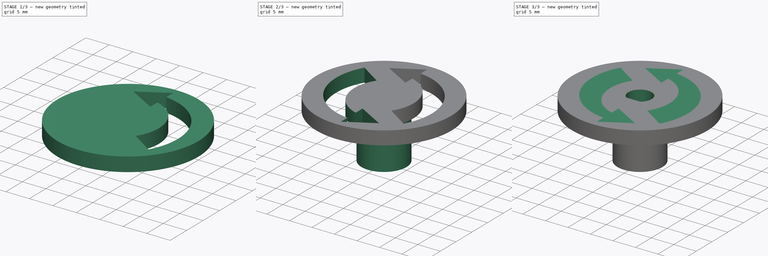
[diagram: build sequence overview — one tinted view per stage of 3, left to right]
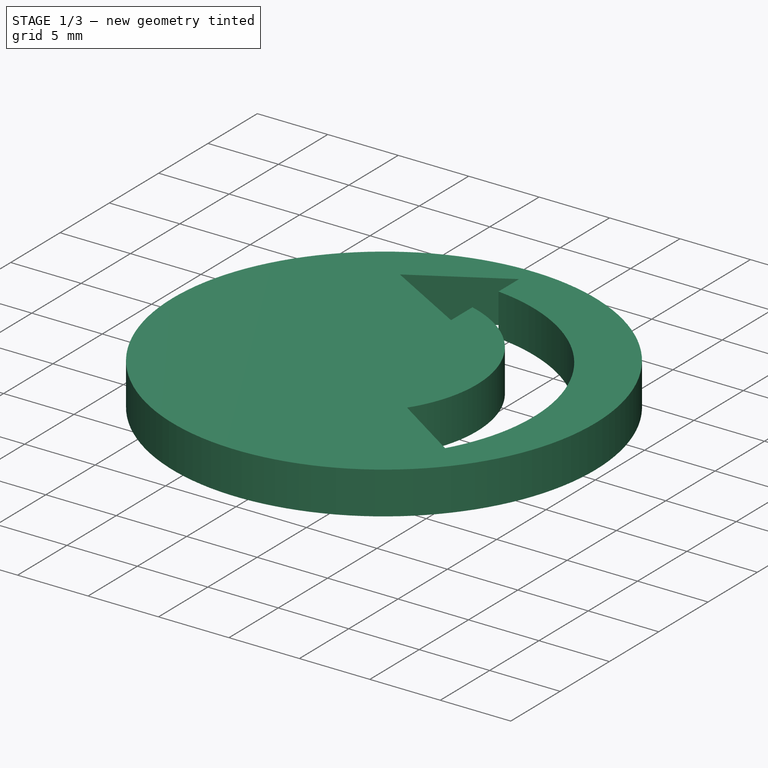
[diagram: stage 1 of 3 — iso view after this stage's code; geometry added in this stage tinted green]
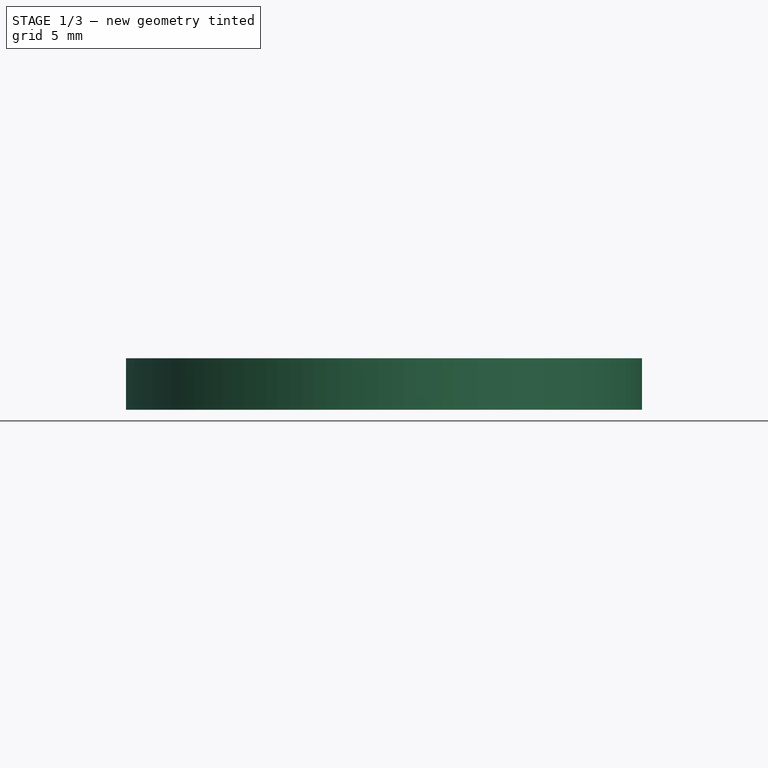
[diagram: stage 1 of 3 — front view after this stage's code; geometry added in this stage tinted green]
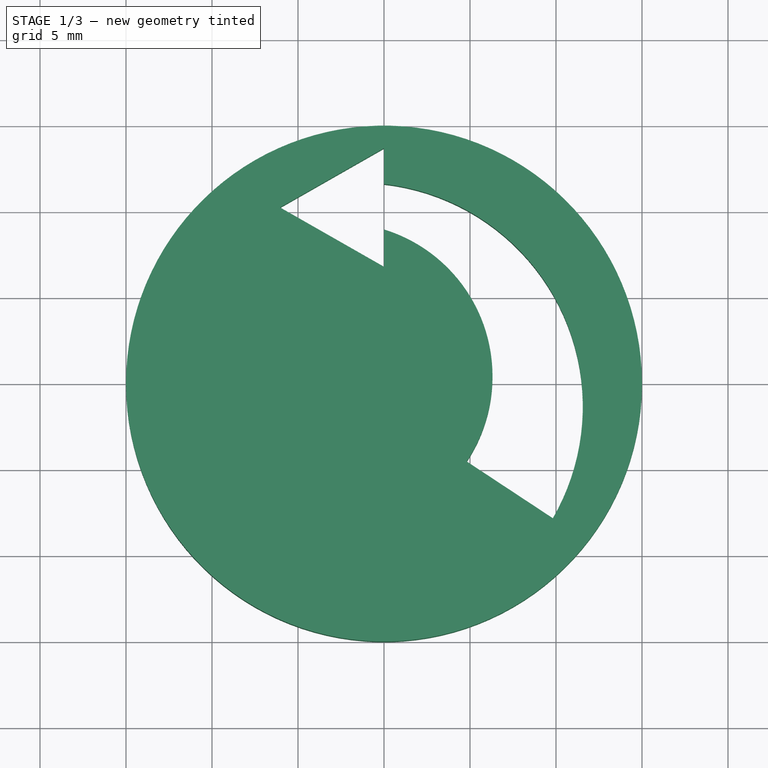
[diagram: stage 1 of 3 — top view after this stage's code; geometry added in this stage tinted green]
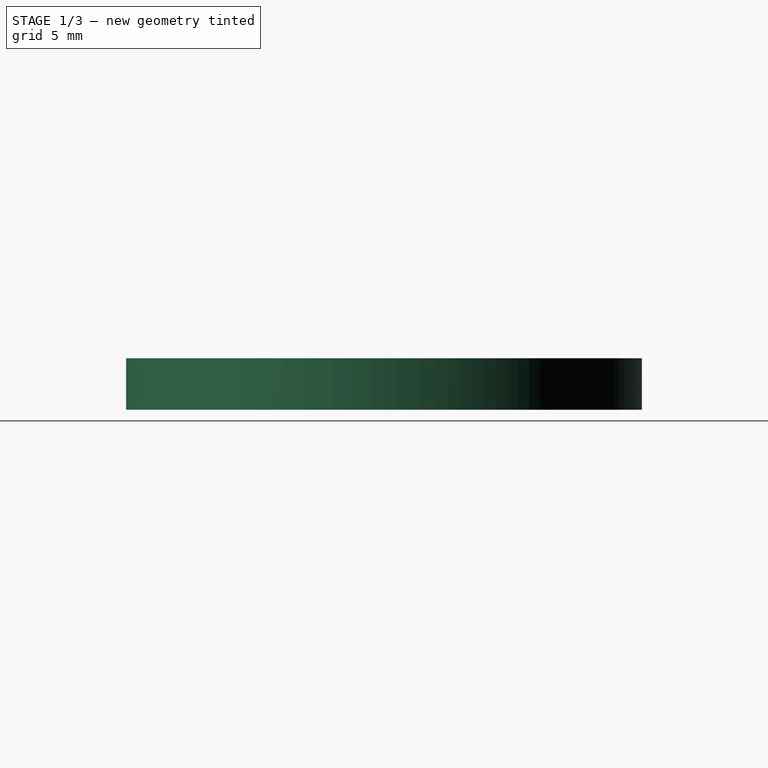
[diagram: stage 1 of 3 — right view after this stage's code; geometry added in this stage tinted green]
FCSTD DOCUMENT  (FreeCAD 0.16R5861 (Git))
Label: stepper_arrow_wheel
License: CreativeCommons Attribution-ShareAlike
LicenseURL: http://creativecommons.org/licenses/by-sa/4.0/
objects: Sketcher::SketchObject×7, PartDesign::Pad×3, PartDesign::Pocket×2, PartDesign::PolarPattern×1
note: 18 computed .brp shape members not serialized (recipe doc carries the construction recipe); baked Part::Feature solids carry a one-line shape summary decoded from their .brp

FEATURE [Sketcher::SketchObject] Sketch
  sketch-geometry (1):
    g0: Circle CenterX=0 CenterY=0 CenterZ=0 NormalX=0 NormalY=0 NormalZ=1 Radius=15
  constraints (2):
    c: Coincident(g0,g-1)
    c: Radius(g0) = 15
FEATURE [PartDesign::Pad] Pad
  Length = 3
  Length2 = 100
  Sketch = -> Sketch
  Type = 0
FEATURE [Sketcher::SketchObject] Sketch001
  Placement = pos=(0,0,3) rot=(0,0,1;0rad)
  Support = -> Pad [Face3]
  sketch-geometry (8):
    g0: LineSegment StartX=-6.04338 StartY=10.2413 StartZ=0 EndX=0 EndY=6.79326 EndZ=0
    g1: LineSegment StartX=0 StartY=13.6894 StartZ=0 EndX=-6.04338 EndY=10.2413 EndZ=0
    g2: Circle [constr] CenterX=-2.03803 CenterY=10.2413 CenterZ=0 NormalX=0 NormalY=0 NormalZ=1 Radius=4.00536
    g3: ArcOfCircle CenterX=-2.62071 CenterY=0.42534 CenterZ=0 NormalX=0 NormalY=0 NormalZ=1 Radius=8.93002 StartAngle=5.69505 EndAngle=7.55613
    g4: ArcOfCircle CenterX=-1.45512 CenterY=-1.32958 CenterZ=0 NormalX=0 NormalY=0 NormalZ=1 Radius=13.014 StartAngle=5.76003 EndAngle=7.74194
    g5: LineSegment StartX=4.80885 StartY=-4.52914 StartZ=0 EndX=9.81823 EndY=-7.8316 EndZ=0
    g6: LineSegment StartX=0 StartY=8.96215 StartZ=0 EndX=0 EndY=6.79326 EndZ=0
    g7: LineSegment StartX=0 StartY=11.6028 StartZ=0 EndX=0 EndY=13.6894 EndZ=0
  constraints (16):
    c: Coincident(g1,g0)
    c: Equal(g0,g1)
    c: PointOnObject(g0,g2)
    c: PointOnObject(g1,g2)
    c: PointOnObject(g1,g2)
    c: Coincident(g5,g3)
    c: Coincident(g5,g4)
    c: PointOnObject(g3,g-2)
    c: PointOnObject(g4,g-2)
    c: Distance(g5) = 6
    c: Coincident(g6,g3)
    c: Coincident(g6,g0)
    c: Vertical(g6)
    c: Coincident(g7,g4)
    c: Vertical(g7)
    c: Coincident(g1,g7)
FEATURE [PartDesign::Pocket] Pocket
  Length = 5
  Sketch = -> Sketch001
  Type = 0
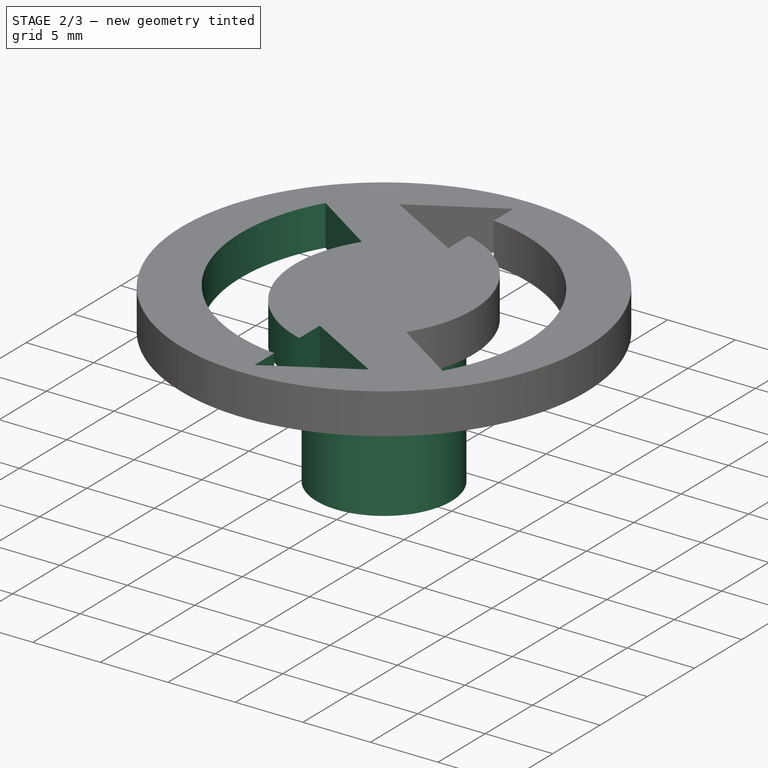
[diagram: stage 2 of 3 — iso view after this stage's code; geometry added in this stage tinted green]
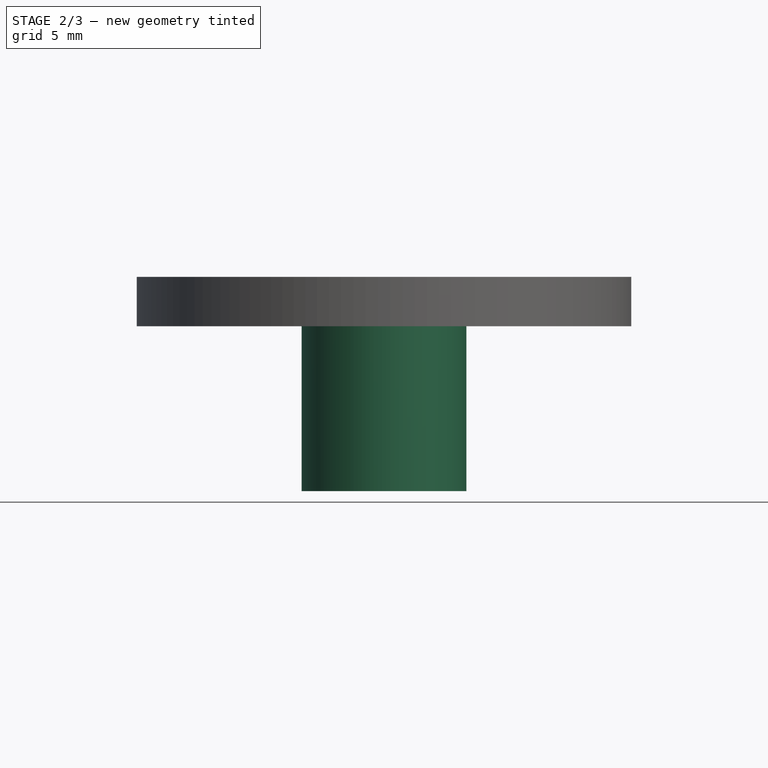
[diagram: stage 2 of 3 — front view after this stage's code; geometry added in this stage tinted green]
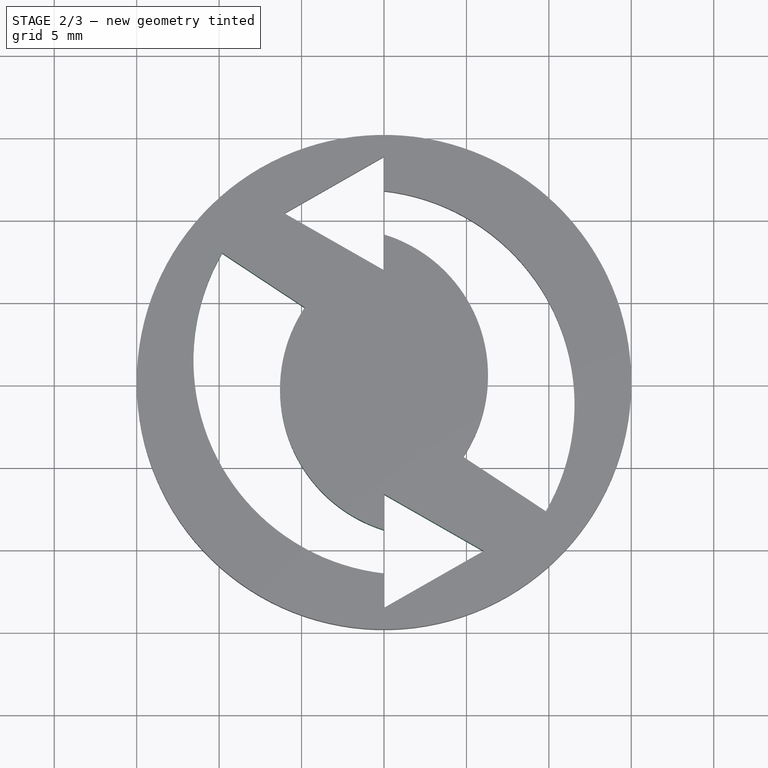
[diagram: stage 2 of 3 — top view after this stage's code; geometry added in this stage tinted green]
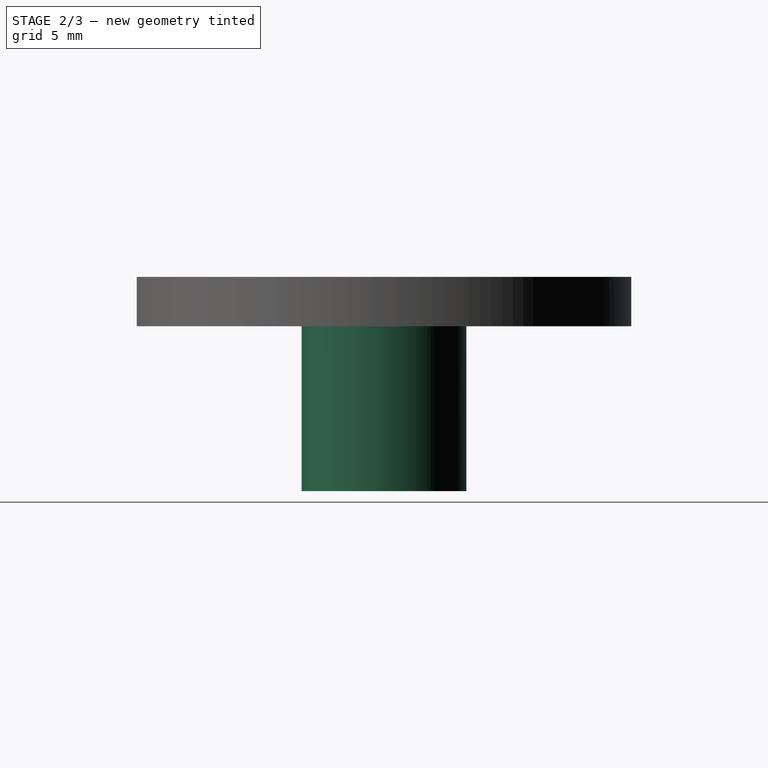
[diagram: stage 2 of 3 — right view after this stage's code; geometry added in this stage tinted green]
FEATURE [PartDesign::PolarPattern] PolarPattern
  Angle = 360
  Axis = -> Sketch001 [N_Axis]
  Occurrences = 2
  Originals = -> [Pocket]
FEATURE [PartDesign::Pad] Pad002
  Length = 10
  Length2 = 100
  Sketch = -> Sketch002
  Type = 0
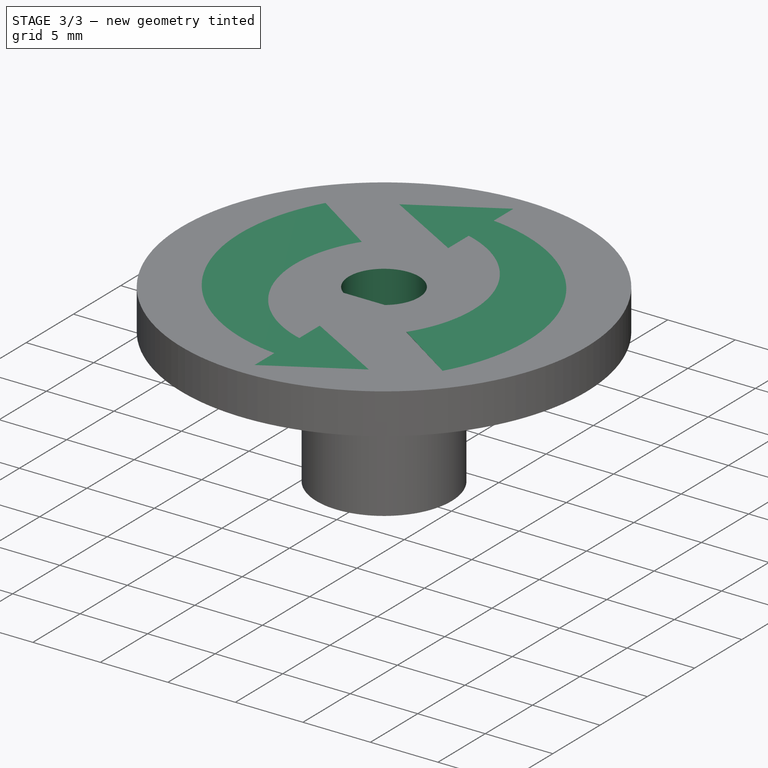
[diagram: stage 3 of 3 — iso view after this stage's code; geometry added in this stage tinted green]
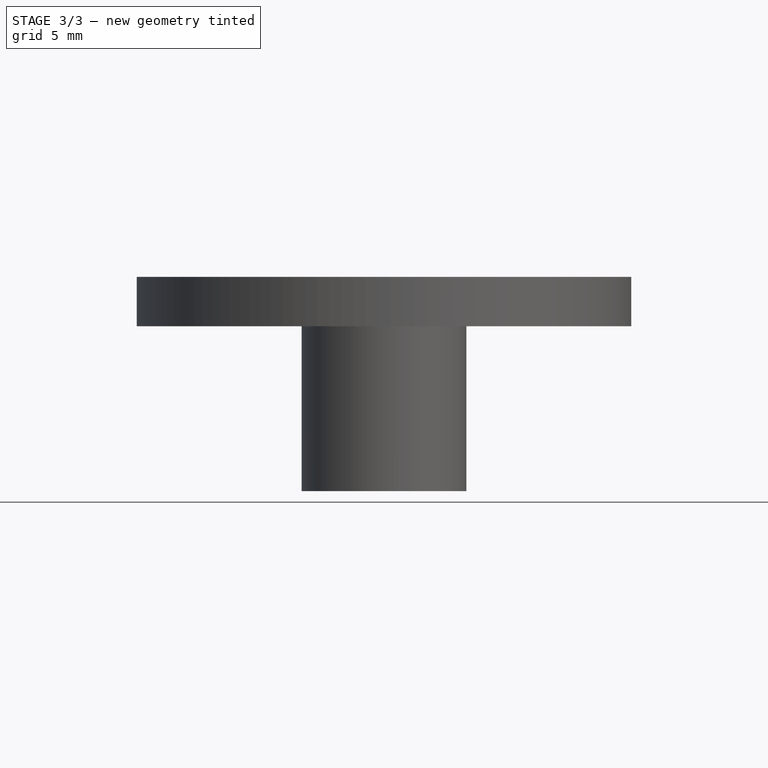
[diagram: stage 3 of 3 — front view after this stage's code; geometry added in this stage tinted green]
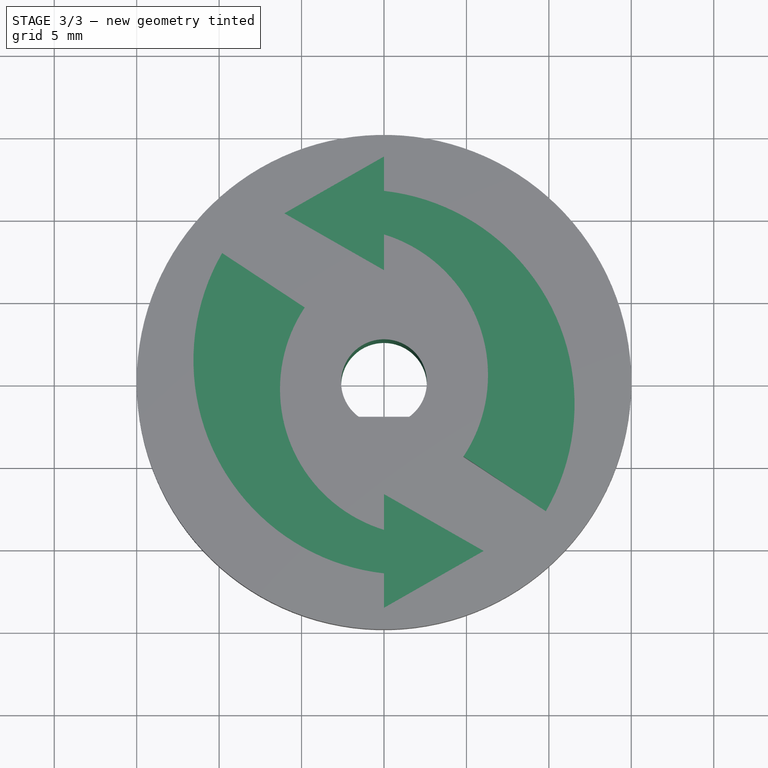
[diagram: stage 3 of 3 — top view after this stage's code; geometry added in this stage tinted green]
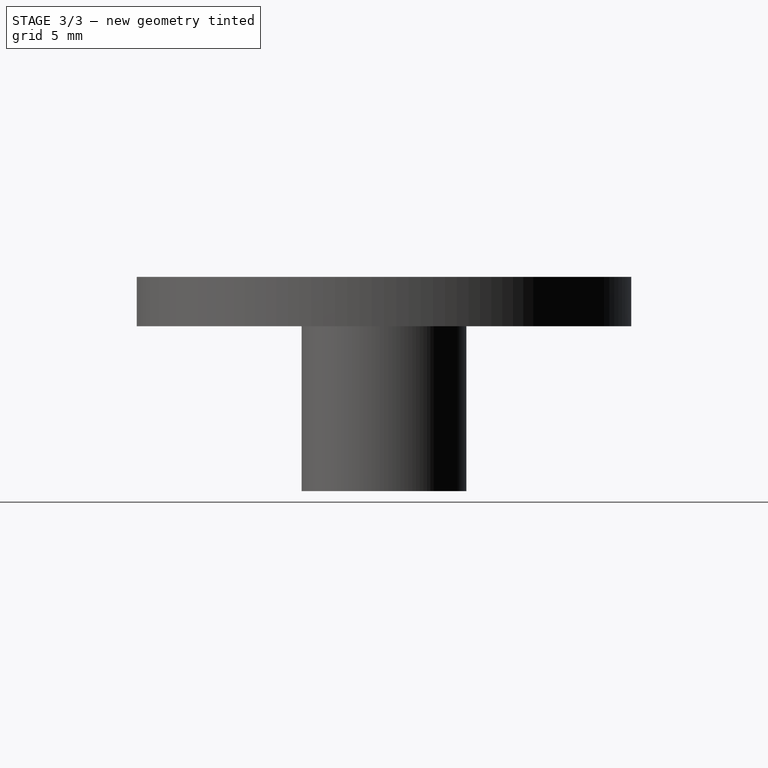
[diagram: stage 3 of 3 — right view after this stage's code; geometry added in this stage tinted green]
FEATURE [Sketcher::SketchObject] Sketch002
  Placement = pos=(0,0,0) rot=(1,0,0;3.14159rad)
  Support = -> PolarPattern [Face2]
  sketch-geometry (1):
    g0: Circle CenterX=0 CenterY=0 CenterZ=0 NormalX=0 NormalY=0 NormalZ=1 Radius=5
  constraints (2):
    c: Coincident(g0,g-1)
    c: Radius(g0) = 5
FEATURE [Sketcher::SketchObject] Sketch005
FEATURE [Sketcher::SketchObject] Sketch006
  Placement = pos=(0,0,3) rot=(0,0,1;0rad)
FEATURE [Sketcher::SketchObject] Sketch007
  Placement = pos=(0,0,3) rot=(0,0,1;0rad)
  sketch-geometry (14):
    g0: LineSegment StartX=0 StartY=8.96215 StartZ=0 EndX=0 EndY=6.79326 EndZ=0
    g1: LineSegment StartX=0 StartY=6.79326 StartZ=0 EndX=-6.04338 EndY=10.2413 EndZ=0
    g2: LineSegment StartX=-6.04338 StartY=10.2413 StartZ=0 EndX=0 EndY=13.6894 EndZ=0
    g3: LineSegment StartX=0 StartY=13.6894 StartZ=0 EndX=-5.96269e-06 EndY=11.6028 EndZ=0
    g4: LineSegment StartX=-9.81823 StartY=7.8316 StartZ=0 EndX=-4.80885 EndY=4.52914 EndZ=0
    g5: LineSegment StartX=-3e-12 StartY=-8.96215 StartZ=0 EndX=0 EndY=-6.79326 EndZ=0
    g6: LineSegment StartX=0 StartY=-6.79326 StartZ=0 EndX=6.04338 EndY=-10.2413 EndZ=0
    g7: LineSegment StartX=6.04338 StartY=-10.2413 StartZ=0 EndX=0 EndY=-13.6894 EndZ=0
    g8: LineSegment StartX=0 StartY=-13.6894 StartZ=0 EndX=0 EndY=-11.6028 EndZ=0
    g9: LineSegment StartX=4.82121 StartY=-4.51057 StartZ=0 EndX=9.81823 EndY=-7.83159 EndZ=0
    g10: ArcOfCircle CenterX=1.45512 CenterY=1.32958 CenterZ=0 NormalX=0 NormalY=0 NormalZ=1 Radius=13.014 StartAngle=2.61844 EndAngle=4.60034
    g11: ArcOfCircle CenterX=2.62071 CenterY=-0.42534 CenterZ=0 NormalX=0 NormalY=0 NormalZ=1 Radius=8.93002 StartAngle=2.55346 EndAngle=4.41453
    g12: ArcOfCircle CenterX=-2.62071 CenterY=0.42534 CenterZ=0 NormalX=0 NormalY=0 NormalZ=1 Radius=8.93002 StartAngle=5.69755 EndAngle=7.55613
    g13: ArcOfCircle CenterX=-1.45512 CenterY=-1.32958 CenterZ=0 NormalX=0 NormalY=0 NormalZ=1 Radius=13.014 StartAngle=5.76003 EndAngle=7.74194
  constraints (14):
    c: Coincident(g0,g1)
    c: Coincident(g1,g2)
    c: Coincident(g2,g3)
    c: Coincident(g5,g6)
    c: Coincident(g6,g7)
    c: Coincident(g7,g8)
    c: Coincident(g10,g4)
    c: Coincident(g10,g8)
    c: Coincident(g11,g4)
    c: Coincident(g11,g5)
    c: Coincident(g12,g0)
    c: Coincident(g12,g9)
    c: Coincident(g13,g3)
    c: Coincident(g13,g9)
FEATURE [PartDesign::Pad] Pad001
  Length = 3
  Length2 = 100
  Placement = pos=(0,0,3) rot=(0,0,1;0rad)
  Reversed = true
  Sketch = -> Sketch007
  Type = 0
FEATURE [Sketcher::SketchObject] Sketch003
  Placement = pos=(0,0,-10) rot=(1,0,0;3.14159rad)
  Support = -> Pad002 [Face1]
  sketch-geometry (3):
    g0: ArcOfCircle CenterX=0 CenterY=0 CenterZ=0 NormalX=0 NormalY=0 NormalZ=1 Radius=2.6 StartAngle=2.20141 EndAngle=7.22336
    g1: LineSegment StartX=-1.53307 StartY=2.09992 StartZ=0 EndX=1.53307 EndY=2.09992 EndZ=0
    g2: LineSegment [constr] StartX=0.0198656 StartY=2.59992 StartZ=0 EndX=0.0198656 EndY=2.09992 EndZ=0
  constraints (7):
    c: Coincident(g-1,g0)
    c: Radius(g0) = 2.6
    c: Horizontal(g1)
    c: PointOnObject(g2,g1)
    c: Vertical(g2)
    c: Coincident(g0,g1)
    c: Coincident(g0,g1)
FEATURE [PartDesign::Pocket] Pocket001
  Length = 5
  Sketch = -> Sketch003
  Type = 1
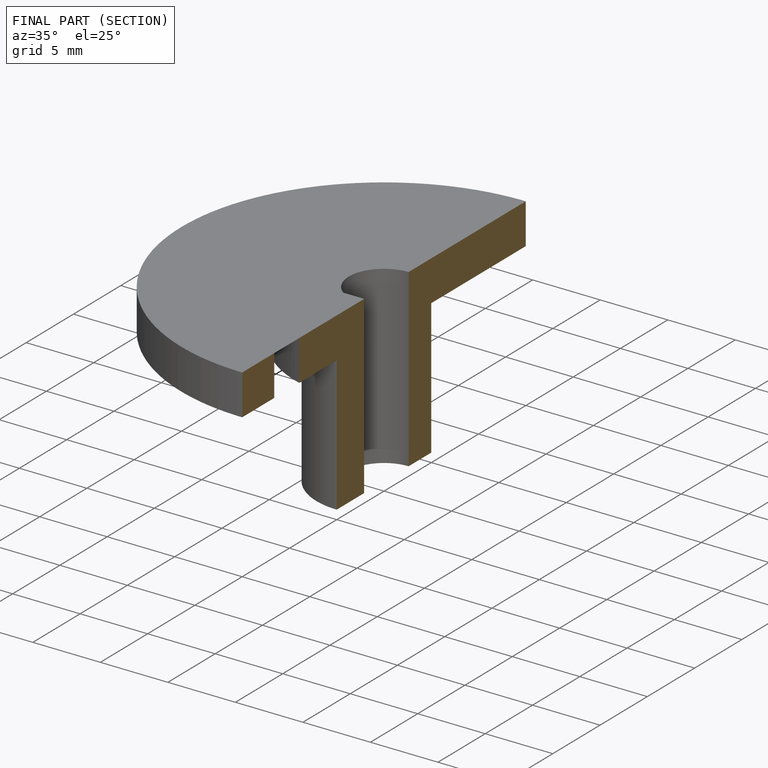
[diagram: finished part — half-section view (interior)]
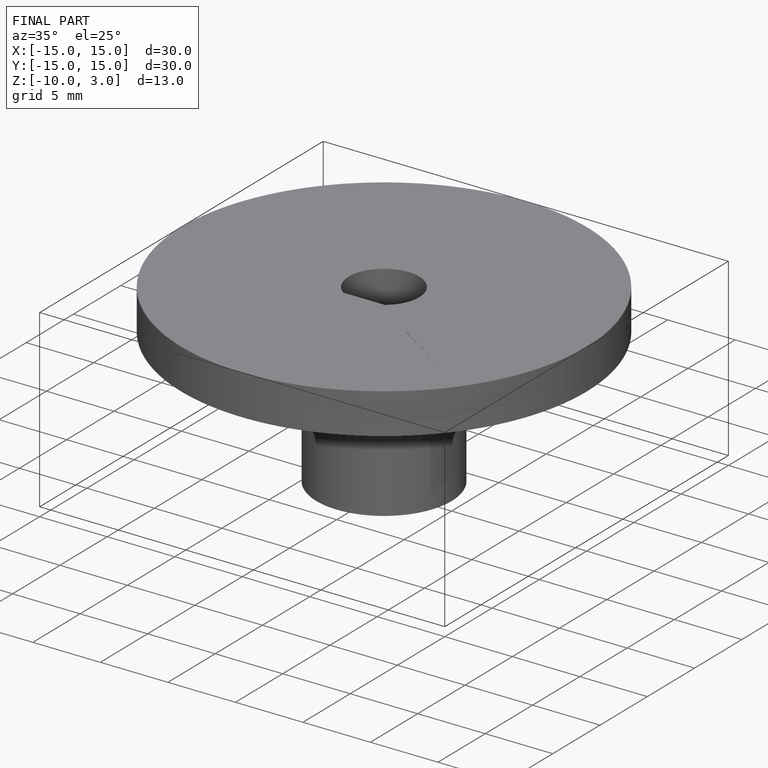
[diagram: finished part — iso view with bounding-box wireframe]
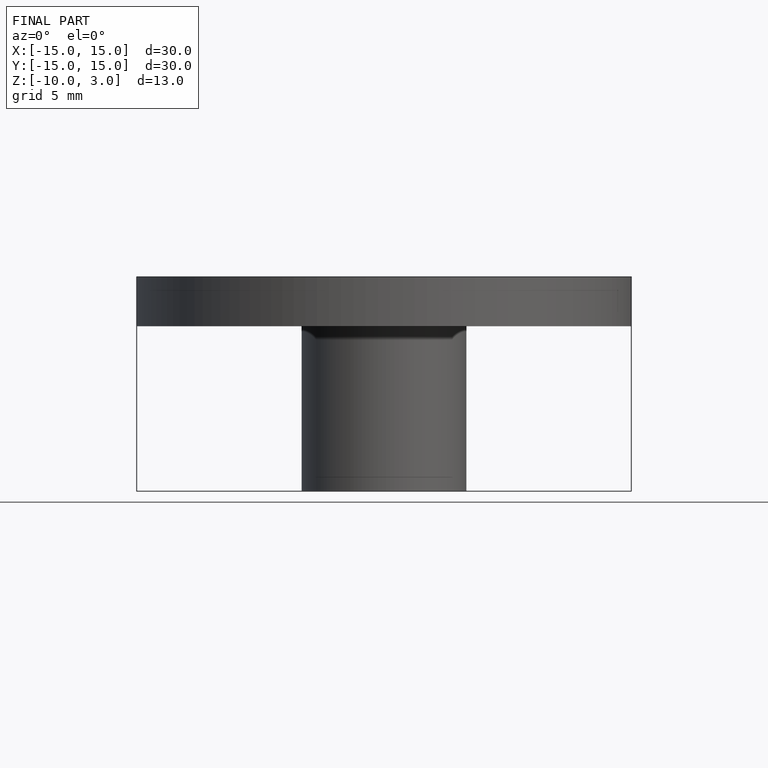
[diagram: finished part — front view with bounding-box wireframe]
